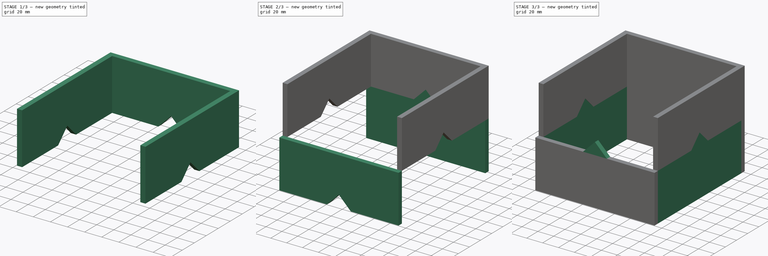
[diagram: build sequence overview — one tinted view per stage of 3, left to right]
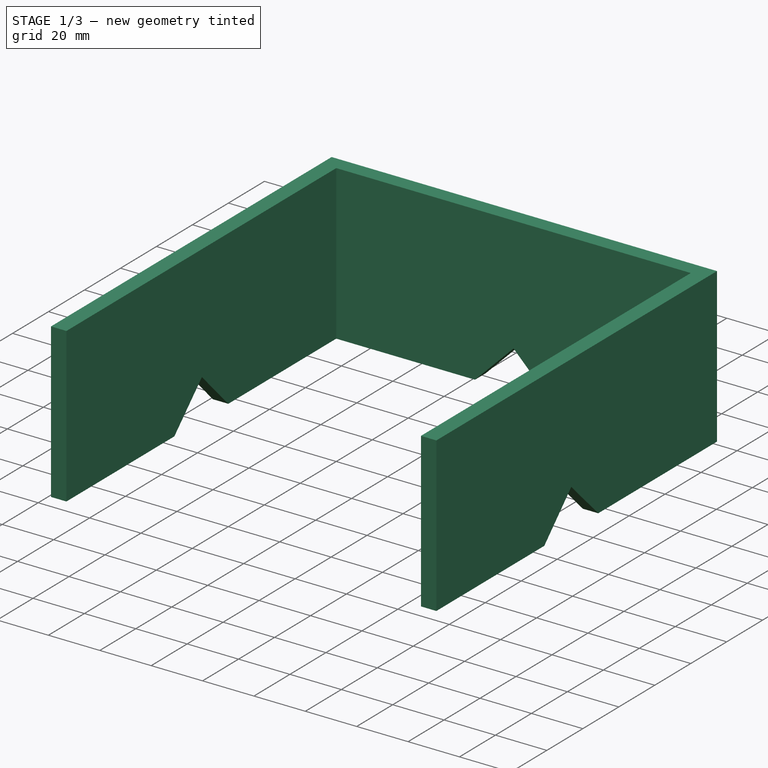
[diagram: stage 1 of 3 — iso view after this stage's code; geometry added in this stage tinted green]
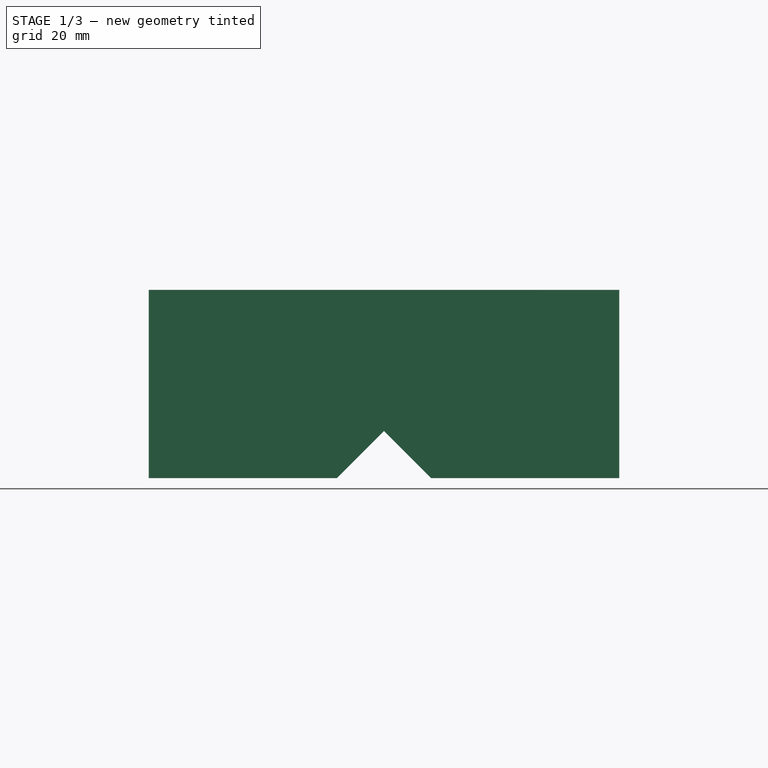
[diagram: stage 1 of 3 — front view after this stage's code; geometry added in this stage tinted green]
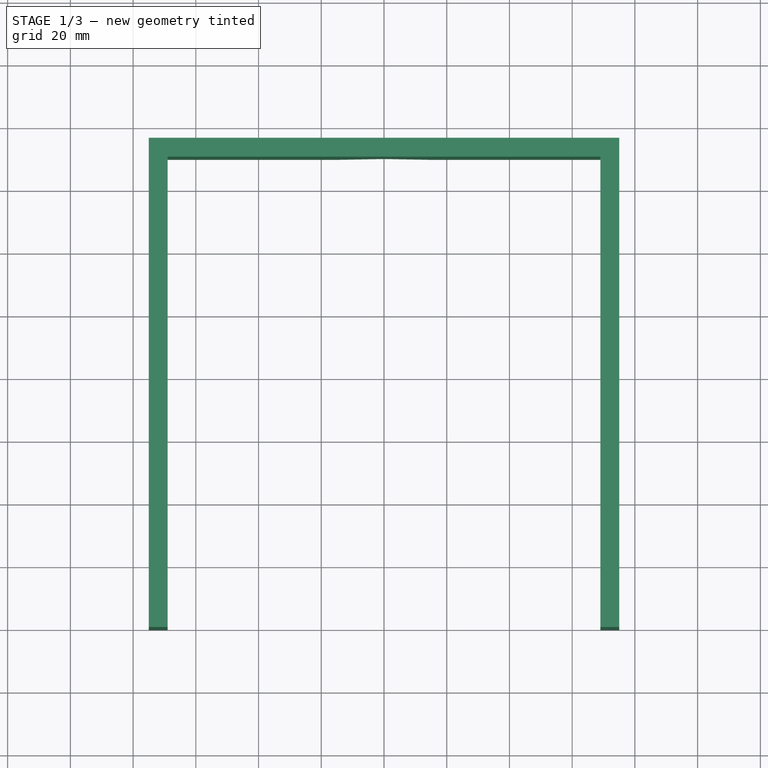
[diagram: stage 1 of 3 — top view after this stage's code; geometry added in this stage tinted green]
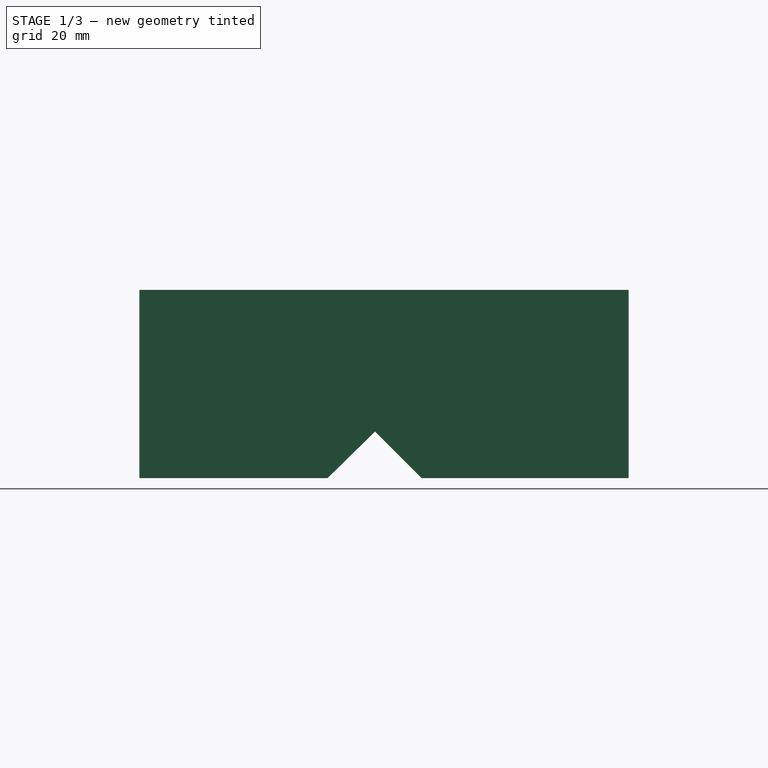
[diagram: stage 1 of 3 — right view after this stage's code; geometry added in this stage tinted green]
FCSTD DOCUMENT  (FreeCAD 0.20R29603 (Git))
Label: casting_box
License: All rights reserved
LicenseURL: http://en.wikipedia.org/wiki/All_rights_reserved
objects: Part::Feature×16, Sketcher::SketchObject×8, PartDesign::Pad×8, PartDesign::Body×8, App::DocumentObjectGroup×1, Part::FeaturePython×1
note: 49 computed .brp shape members not serialized (recipe doc carries the construction recipe); baked Part::Feature solids carry a one-line shape summary decoded from their .brp

FEATURE [PartDesign::Body] Body004  label="TopFront"
  Group = -> [Sketch004,Pad004]
  Origin = -> Origin004
  Placement = pos=(0,0,60) rot=(0,0,1;0rad)
  Tip = -> Pad004
FEATURE [Sketcher::SketchObject] Sketch005
  AttachmentOffset = pos=(0,60,-75) rot=(0,0,1;0rad)
  FullyConstrained = true
  MapMode = 5
  Placement = pos=(-75,3e-14,60) rot=(0.57735,0.57735,0.57735;2.0944rad)
  Support = -> [YZ_Plane005]
  sketch-geometry (7):
    g0: LineSegment StartX=150 StartY=0 StartZ=0 EndX=150 EndY=60 EndZ=0
    g1: LineSegment StartX=150 StartY=60 StartZ=0 EndX=0 EndY=60 EndZ=0
    g2: LineSegment StartX=0 StartY=60 StartZ=0 EndX=0 EndY=0 EndZ=0
    g3: LineSegment StartX=0 StartY=0 StartZ=0 EndX=59.9967 EndY=0 EndZ=0
    g4: LineSegment StartX=150 StartY=0 StartZ=0 EndX=90.0033 EndY=0 EndZ=0
    g5: LineSegment StartX=90.0033 StartY=0 StartZ=0 EndX=75.3142 EndY=15 EndZ=0
    g6: LineSegment StartX=59.9967 StartY=0 StartZ=0 EndX=75.3142 EndY=15 EndZ=0
  constraints (20):
    c: Coincident(g0,g1)
    c: Coincident(g1,g2)
    c: Horizontal(g1)
    c: Vertical(g0)
    c: Vertical(g2)
    c: DistanceY(g0,g0) = 60
    c: DistanceX(g2,g0) = 150
    c: Coincident(g3,g2)
    c: PointOnObject(g3,g-1)
    c: Coincident(g4,g0)
    c: PointOnObject(g4,g-1)
    c: Horizontal(g4)
    c: Coincident(g5,g4)
    c: Coincident(g6,g3)
    c: Coincident(g6,g5)
    c: Equal(g3,g4)
    c: Coincident(g2,g-1)
    c: Angle(g6,g5) = 1.5708
    c: Angle(g6,g-1) = 2.36667
    c: DistanceY(g4,g5) = 15
FEATURE [PartDesign::Pad] Pad005
  Direction = (1,-2e-16,3e-16)
  Length = 6
  Length2 = 10
  Placement = pos=(0,0,0) rot=(0.57735,0.57735,0.57735;2.0944rad)
  Profile = -> Sketch005
  ReferenceAxis = -> Sketch005 [N_Axis]
  Type = 0
FEATURE [PartDesign::Body] Body005  label="TopLeft"
  Group = -> [Sketch005,Pad005]
  Origin = -> Origin005
  Tip = -> Pad005
FEATURE [Sketcher::SketchObject] Sketch006
  AttachmentOffset = pos=(0,60,75) rot=(0,0,1;0rad)
  FullyConstrained = true
  MapMode = 5
  Placement = pos=(75,-3.3e-15,60) rot=(0.57735,0.57735,0.57735;2.0944rad)
  Support = -> [YZ_Plane006]
  sketch-geometry (7):
    g0: LineSegment StartX=150 StartY=0 StartZ=0 EndX=150 EndY=60 EndZ=0
    g1: LineSegment StartX=150 StartY=60 StartZ=0 EndX=0 EndY=60 EndZ=0
    g2: LineSegment StartX=0 StartY=60 StartZ=0 EndX=0 EndY=0 EndZ=0
    g3: LineSegment StartX=0 StartY=0 StartZ=0 EndX=60 EndY=0 EndZ=0
    g4: LineSegment StartX=150 StartY=0 StartZ=0 EndX=90 EndY=0 EndZ=0
    g5: LineSegment StartX=60 StartY=0 StartZ=0 EndX=75 EndY=15 EndZ=0
    g6: LineSegment StartX=90 StartY=0 StartZ=0 EndX=75 EndY=15 EndZ=0
  constraints (20):
    c: Coincident(g0,g1)
    c: Coincident(g1,g2)
    c: Horizontal(g1)
    c: Vertical(g0)
    c: Vertical(g2)
    c: Coincident(g3,g2)
    c: PointOnObject(g3,g-1)
    c: Coincident(g4,g0)
    c: PointOnObject(g4,g-1)
    c: Horizontal(g4)
    c: Coincident(g5,g3)
    c: Coincident(g6,g4)
    c: Coincident(g6,g5)
    c: Angle(g5,g6) = 1.5708
    c: Angle(g5,g-1) = 2.35619
    c: Equal(g3,g4)
    c: Coincident(g2,g-1)
    c: DistanceY(g0,g0) = 60
    c: DistanceX(g1,g1) = 150
    c: DistanceY(g4,g5) = 15
FEATURE [PartDesign::Pad] Pad006
  Direction = (1,-2e-16,3e-16)
  Length = 6
  Length2 = 10
  Placement = pos=(0,0,0) rot=(0.57735,0.57735,0.57735;2.0944rad)
  Profile = -> Sketch006
  ReferenceAxis = -> Sketch006 [N_Axis]
  Reversed = true
  Type = 0
FEATURE [PartDesign::Body] Body006  label="TopRight"
  Group = -> [Sketch006,Pad006]
  Origin = -> Origin006
  Tip = -> Pad006
FEATURE [Sketcher::SketchObject] Sketch007
  AttachmentOffset = pos=(0,60,-150) rot=(0,0,1;0rad)
  FullyConstrained = true
  MapMode = 5
  Placement = pos=(0,150,60) rot=(1,0,0;1.5708rad)
  Support = -> [XZ_Plane007]
  sketch-geometry (7):
    g0: LineSegment StartX=-75 StartY=60 StartZ=0 EndX=75 EndY=60 EndZ=0
    g1: LineSegment StartX=75 StartY=60 StartZ=0 EndX=75 EndY=0 EndZ=0
    g2: LineSegment StartX=-75 StartY=0 StartZ=0 EndX=-75 EndY=60 EndZ=0
    g3: LineSegment StartX=-75 StartY=0 StartZ=0 EndX=-15 EndY=0 EndZ=0
    g4: LineSegment StartX=75 StartY=0 StartZ=0 EndX=15 EndY=0 EndZ=0
    g5: LineSegment StartX=-15 StartY=0 StartZ=0 EndX=1.8e-15 EndY=15 EndZ=0
    g6: LineSegment StartX=15 StartY=0 StartZ=0 EndX=1.8e-15 EndY=15 EndZ=0
  constraints (20):
    c: Coincident(g0,g1)
    c: Coincident(g2,g0)
    c: Horizontal(g0)
    c: Vertical(g1)
    c: Vertical(g2)
    c: DistanceY(g1,g1) = 60
    c: DistanceX(g0,g0) = 150
    c: Symmetric(g2,g1,g-1)
    c: Coincident(g3,g2)
    c: PointOnObject(g3,g-1)
    c: Horizontal(g3)
    c: Coincident(g4,g1)
    c: Horizontal(g4)
    c: Coincident(g5,g3)
    c: Coincident(g6,g4)
    c: Coincident(g6,g5)
    c: PointOnObject(g5,g-2)
    c: Equal(g3,g4)
    c: DistanceY(g4,g5) = 15
    c: Angle(g5,g6) = 1.5708
FEATURE [PartDesign::Pad] Pad007
  Direction = (0,-1,2e-16)
  Length = 6
  Length2 = 10
  Placement = pos=(0,0,0) rot=(1,0,0;1.5708rad)
  Profile = -> Sketch007
  ReferenceAxis = -> Sketch007 [N_Axis]
  Reversed = true
  Type = 0
FEATURE [PartDesign::Body] Body007  label="TopBack"
  Group = -> [Sketch007,Pad007]
  Origin = -> Origin007
  Tip = -> Pad007
FEATURE [Part::Feature] Body008  label="Front001"
  shape: bbox 150 x 6 x 75 mm, 9 faces (baked)
FEATURE [Part::Feature] Body001001  label="Left001"
  shape: bbox 6 x 150 x 75 mm, 9 faces (baked)
FEATURE [Part::Feature] Body002001  label="Right001"
  shape: bbox 6 x 150 x 75 mm, 9 faces (baked)
FEATURE [Part::Feature] Body003001  label="Back001"
  shape: bbox 150 x 6 x 75 mm, 9 faces (baked)
FEATURE [Part::Feature] Body004001  label="TopFront001"
  Placement = pos=(0,0,60) rot=(0,0,1;0rad)
  shape: bbox 150 x 6 x 60 mm, 9 faces (baked)
FEATURE [Part::Feature] Body005001  label="TopLeft001"
  shape: bbox 6 x 150 x 60 mm, 9 faces (baked)
FEATURE [Part::Feature] Body006001  label="TopRight001"
  shape: bbox 6 x 150 x 60 mm, 9 faces (baked)
FEATURE [Part::Feature] Body007001  label="TopBack001"
  shape: bbox 150 x 6 x 60 mm, 9 faces (baked)
FEATURE [App::DocumentObjectGroup] MultiJoin_origin_parts
  Group = -> [Body008,Body001001,Body002001,Body003001,Body004001,Body005001,Body006001,Body007001]
FEATURE [Part::Feature] Front001_tab
  shape: bbox 150 x 6 x 75 mm, 23 faces (baked)
FEATURE [Part::Feature] Left001_tab
  shape: bbox 6 x 162 x 75 mm, 25 faces (baked)
FEATURE [Part::Feature] Right001_tab
  shape: bbox 6 x 162 x 75 mm, 25 faces (baked)
FEATURE [Part::Feature] Back001_tab
  shape: bbox 150 x 6 x 75 mm, 23 faces (baked)
FEATURE [Part::Feature] TopFront001_tab
  shape: bbox 150 x 6 x 60 mm, 23 faces (baked)
FEATURE [Part::Feature] TopLeft001_tab
  shape: bbox 6 x 162 x 60 mm, 25 faces (baked)
FEATURE [Part::Feature] TopRight001_tab
  shape: bbox 6 x 162 x 60 mm, 25 faces (baked)
FEATURE [Part::Feature] TopBack001_tab
  shape: bbox 150 x 6 x 60 mm, 23 faces (baked)
FEATURE [Part::FeaturePython] MultiJoin  # WARN: FeaturePython — macro-defined, semantics opaque (R4)
  fromParts = -> [MultiJoin_origin_parts,Body008,Body001001,Body002001,Body003001,Body004001,Body005001,Body006001,Body007001]
  generatedParts = -> [Front001_tab,Left001_tab,Right001_tab,Back001_tab,TopFront001_tab,TopLeft001_tab,TopRight001_tab,TopBack001_tab]
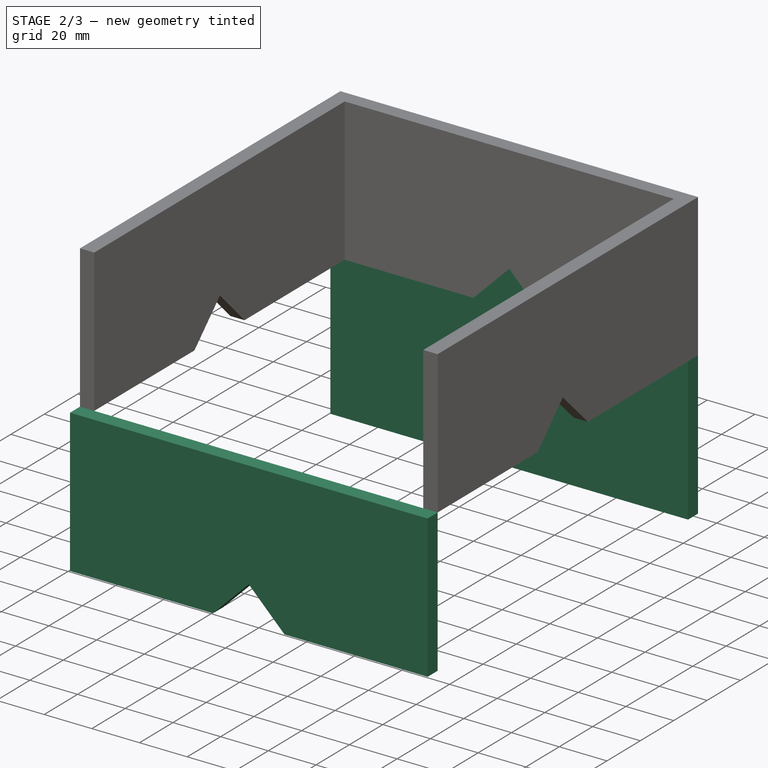
[diagram: stage 2 of 3 — iso view after this stage's code; geometry added in this stage tinted green]
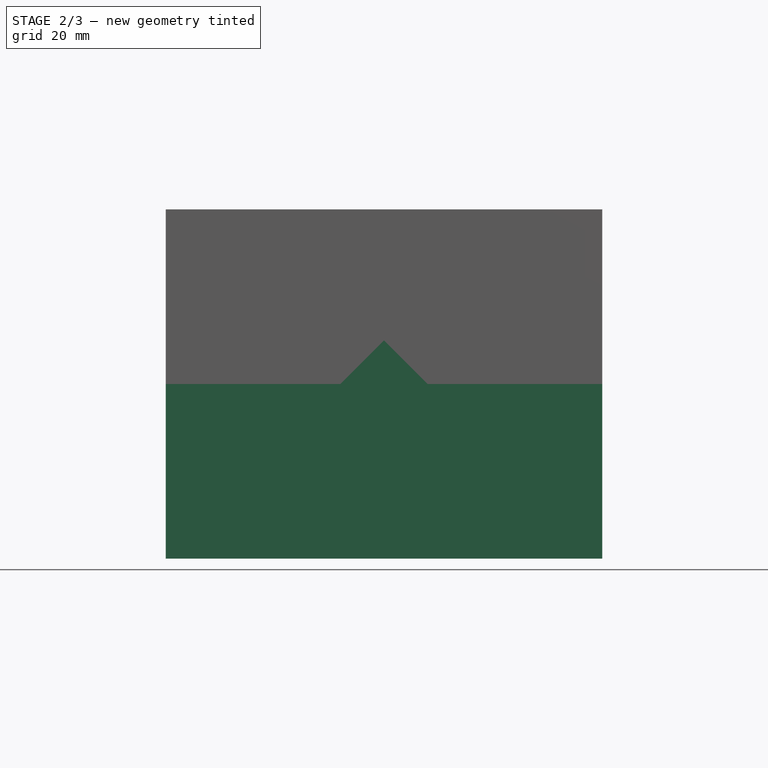
[diagram: stage 2 of 3 — front view after this stage's code; geometry added in this stage tinted green]
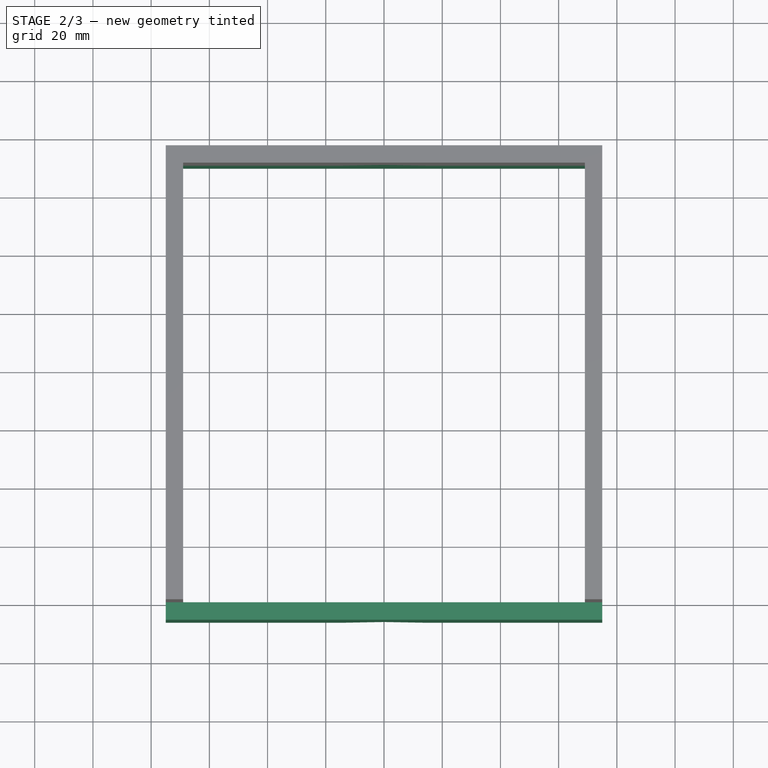
[diagram: stage 2 of 3 — top view after this stage's code; geometry added in this stage tinted green]
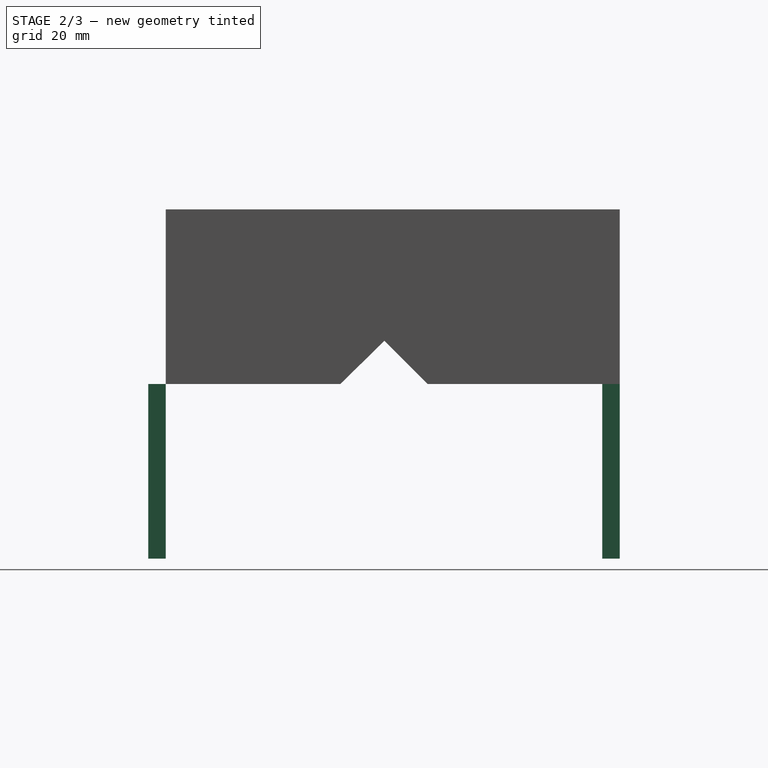
[diagram: stage 2 of 3 — right view after this stage's code; geometry added in this stage tinted green]
FEATURE [PartDesign::Body] Body002  label="Right"
  Group = -> [Sketch002,Pad002]
  Origin = -> Origin002
  Tip = -> Pad002
FEATURE [Sketcher::SketchObject] Sketch003
  AttachmentOffset = pos=(0,0,-150) rot=(0,0,1;0rad)
  FullyConstrained = true
  MapMode = 5
  Placement = pos=(0,150,-3.33e-14) rot=(1,0,0;1.5708rad)
  Support = -> [XZ_Plane003]
  sketch-geometry (7):
    g0: LineSegment StartX=-75 StartY=0 StartZ=0 EndX=75 EndY=0 EndZ=0
    g1: LineSegment StartX=75 StartY=0 StartZ=0 EndX=75 EndY=60 EndZ=0
    g2: LineSegment StartX=-75 StartY=60 StartZ=0 EndX=-75 EndY=0 EndZ=0
    g3: LineSegment StartX=-75 StartY=60 StartZ=0 EndX=-15 EndY=60 EndZ=0
    g4: LineSegment StartX=75 StartY=60 StartZ=0 EndX=15 EndY=60 EndZ=0
    g5: LineSegment StartX=-15 StartY=60 StartZ=0 EndX=3.6e-15 EndY=75 EndZ=0
    g6: LineSegment StartX=15 StartY=60 StartZ=0 EndX=3.6e-15 EndY=75 EndZ=0
  constraints (20):
    c: Coincident(g0,g1)
    c: Coincident(g2,g0)
    c: Horizontal(g0)
    c: Vertical(g1)
    c: Vertical(g2)
    c: DistanceY(g1,g1) = 60
    c: DistanceX(g2,g1) = 150
    c: Symmetric(g0,g0,g-1)
    c: Coincident(g3,g2)
    c: Horizontal(g3)
    c: Coincident(g4,g1)
    c: Horizontal(g4)
    c: Coincident(g5,g3)
    c: Coincident(g6,g4)
    c: Coincident(g6,g5)
    c: Angle(g5,g6) = 1.5708
    c: Equal(g3,g4)
    c: DistanceY(g2,g2) = 60
    c: Angle(g0,g5) = 0.785398
    c: DistanceY(g4,g5) = 15
FEATURE [PartDesign::Pad] Pad003
  Direction = (0,-1,2e-16)
  Length = 6
  Length2 = 10
  Placement = pos=(0,0,0) rot=(1,0,0;1.5708rad)
  Profile = -> Sketch003
  ReferenceAxis = -> Sketch003 [N_Axis]
  Reversed = true
  Type = 0
FEATURE [PartDesign::Body] Body003  label="Back"
  Group = -> [Sketch003,Pad003]
  Origin = -> Origin003
  Tip = -> Pad003
FEATURE [Sketcher::SketchObject] Sketch004
  FullyConstrained = true
  MapMode = 5
  Placement = pos=(0,0,0) rot=(1,0,0;1.5708rad)
  Support = -> [XZ_Plane004]
  sketch-geometry (7):
    g0: LineSegment StartX=75 StartY=0 StartZ=0 EndX=75 EndY=60 EndZ=0
    g1: LineSegment StartX=75 StartY=60 StartZ=0 EndX=-75 EndY=60 EndZ=0
    g2: LineSegment StartX=-75 StartY=60 StartZ=0 EndX=-75 EndY=0 EndZ=0
    g3: LineSegment StartX=-75 StartY=0 StartZ=0 EndX=-15 EndY=0 EndZ=0
    g4: LineSegment StartX=75 StartY=0 StartZ=0 EndX=15 EndY=0 EndZ=0
    g5: LineSegment StartX=-15 StartY=0 StartZ=0 EndX=0 EndY=15 EndZ=0
    g6: LineSegment StartX=15 StartY=0 StartZ=0 EndX=0 EndY=15 EndZ=0
  constraints (20):
    c: Coincident(g0,g1)
    c: Coincident(g1,g2)
    c: Horizontal(g1)
    c: Vertical(g0)
    c: Vertical(g2)
    c: DistanceY(g0,g0) = 60
    c: DistanceX(g1,g1) = 150
    c: Symmetric(g2,g0,g-1)
    c: Coincident(g3,g2)
    c: Horizontal(g3)
    c: Coincident(g4,g0)
    c: Horizontal(g4)
    c: Coincident(g5,g3)
    c: Coincident(g6,g4)
    c: Coincident(g6,g5)
    c: PointOnObject(g5,g-2)
    c: Equal(g3,g4)
    c: Angle(g5,g6) = 1.5708
    c: DistanceY(g4,g5) = 15
    c: PointOnObject(g0,g-1)
FEATURE [PartDesign::Pad] Pad004
  Direction = (0,-1,2e-16)
  Length = 6
  Length2 = 10
  Placement = pos=(0,0,0) rot=(1,0,0;1.5708rad)
  Profile = -> Sketch004
  ReferenceAxis = -> Sketch004 [N_Axis]
  Type = 0
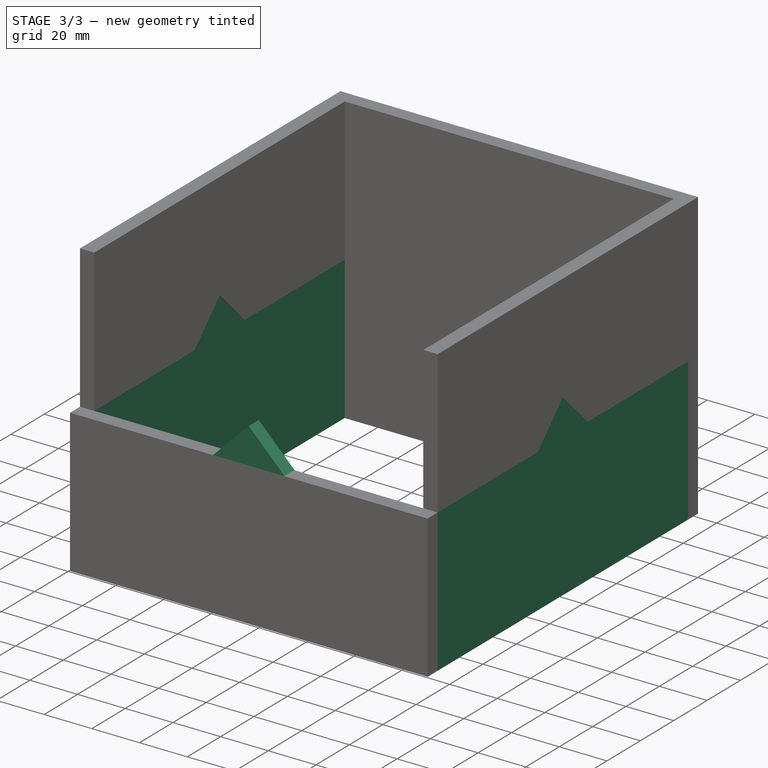
[diagram: stage 3 of 3 — iso view after this stage's code; geometry added in this stage tinted green]
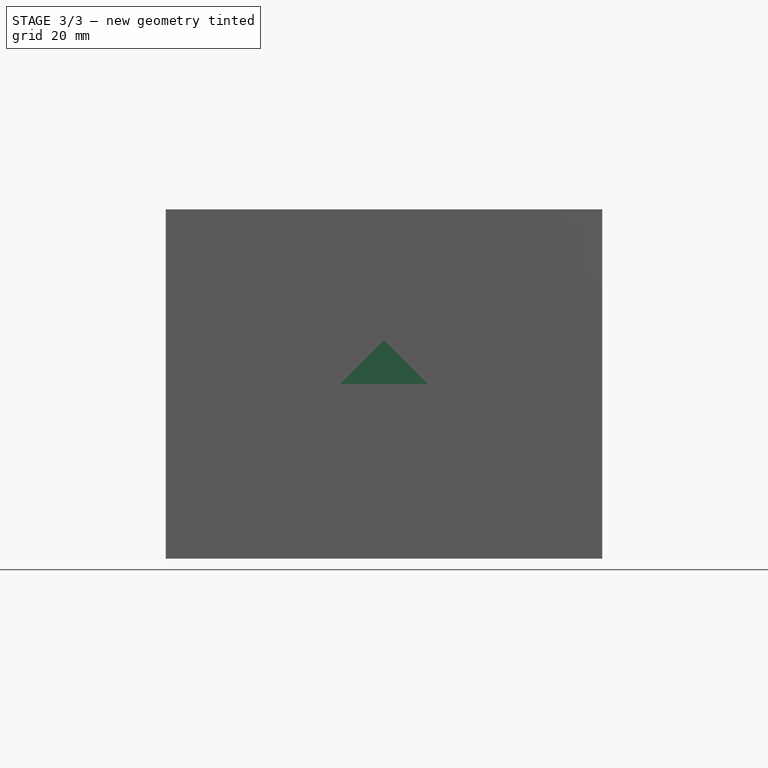
[diagram: stage 3 of 3 — front view after this stage's code; geometry added in this stage tinted green]
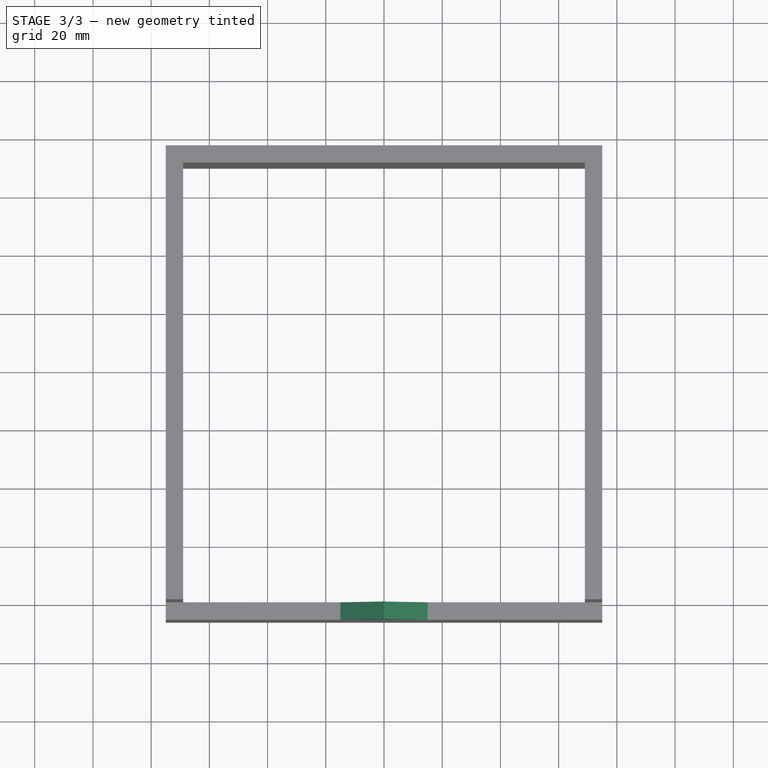
[diagram: stage 3 of 3 — top view after this stage's code; geometry added in this stage tinted green]
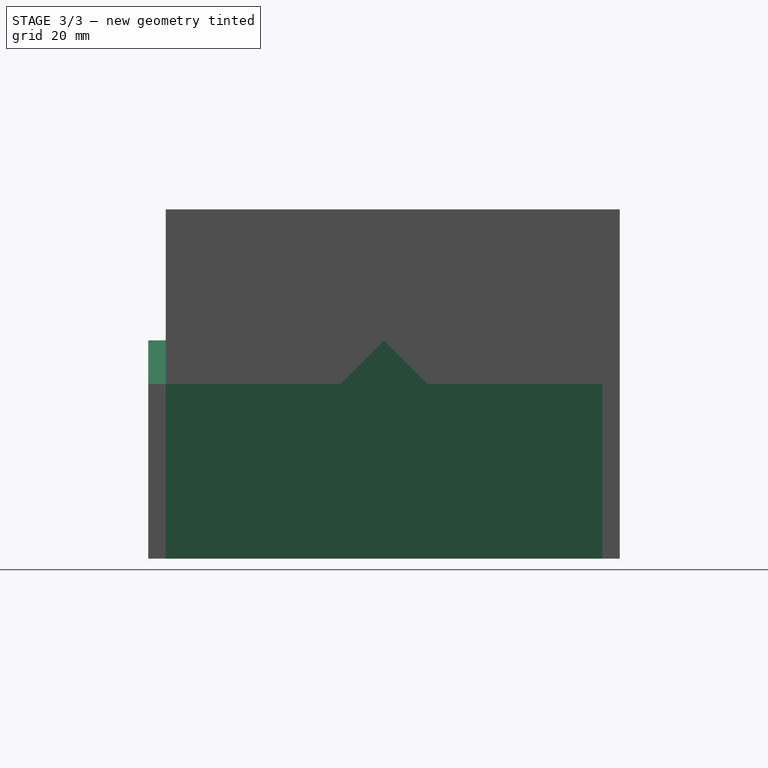
[diagram: stage 3 of 3 — right view after this stage's code; geometry added in this stage tinted green]
FEATURE [Sketcher::SketchObject] Sketch
  FullyConstrained = true
  MapMode = 5
  Placement = pos=(0,0,0) rot=(1,0,0;1.5708rad)
  Support = -> [XZ_Plane]
  sketch-geometry (7):
    g0: LineSegment StartX=-75 StartY=0 StartZ=0 EndX=75 EndY=0 EndZ=0
    g1: LineSegment StartX=75 StartY=0 StartZ=0 EndX=75 EndY=60 EndZ=0
    g2: LineSegment StartX=-75 StartY=60 StartZ=0 EndX=-75 EndY=0 EndZ=0
    g3: LineSegment StartX=-75 StartY=60 StartZ=0 EndX=-15 EndY=60 EndZ=0
    g4: LineSegment StartX=75 StartY=60 StartZ=0 EndX=15 EndY=60 EndZ=0
    g5: LineSegment StartX=-15 StartY=60 StartZ=0 EndX=-5.3e-15 EndY=75 EndZ=0
    g6: LineSegment StartX=15 StartY=60 StartZ=0 EndX=-7.1e-15 EndY=75 EndZ=0
  constraints (20):
    c: Coincident(g0,g1)
    c: Coincident(g2,g0)
    c: Horizontal(g0)
    c: Vertical(g1)
    c: Vertical(g2)
    c: DistanceY(g1,g1) = 60
    c: DistanceX(g2,g1) = 150
    c: Symmetric(g0,g0,g-1)
    c: Coincident(g3,g2)
    c: Horizontal(g3)
    c: Coincident(g4,g1)
    c: Horizontal(g4)
    c: Coincident(g5,g3)
    c: Coincident(g6,g4)
    c: Coincident(g6,g5)
    c: Angle(g5,g6) = 1.5708
    c: Angle(g0,g5) = 0.785398
    c: Equal(g3,g4)
    c: DistanceY(g4,g5) = 15
    c: DistanceY(g2,g2) = 60
FEATURE [PartDesign::Pad] Pad
  Direction = (0,-1,2e-16)
  Length = 6
  Length2 = 10
  Placement = pos=(0,0,0) rot=(1,0,0;1.5708rad)
  Profile = -> Sketch
  ReferenceAxis = -> Sketch [N_Axis]
  Type = 0
FEATURE [PartDesign::Body] Body  label="Front"
  Group = -> [Sketch,Pad]
  Origin = -> Origin
  Tip = -> Pad
FEATURE [Sketcher::SketchObject] Sketch001
  AttachmentOffset = pos=(0,0,-75) rot=(0,0,1;0rad)
  FullyConstrained = true
  MapMode = 5
  Placement = pos=(-75,1.67e-14,-1.67e-14) rot=(0.57735,0.57735,0.57735;2.0944rad)
  Support = -> [YZ_Plane001]
  sketch-geometry (7):
    g0: LineSegment StartX=0 StartY=0 StartZ=0 EndX=150 EndY=0 EndZ=0
    g1: LineSegment StartX=150 StartY=0 StartZ=0 EndX=150 EndY=60 EndZ=0
    g2: LineSegment StartX=0 StartY=60 StartZ=0 EndX=0 EndY=0 EndZ=0
    g3: LineSegment StartX=0 StartY=60 StartZ=0 EndX=60 EndY=60 EndZ=0
    g4: LineSegment StartX=150 StartY=60 StartZ=0 EndX=90 EndY=60 EndZ=0
    g5: LineSegment StartX=60 StartY=60 StartZ=0 EndX=75 EndY=75 EndZ=0
    g6: LineSegment StartX=90 StartY=60 StartZ=0 EndX=75 EndY=75 EndZ=0
  constraints (20):
    c: Coincident(g0,g1)
    c: Coincident(g2,g0)
    c: Horizontal(g0)
    c: Vertical(g1)
    c: Vertical(g2)
    c: Coincident(g0,g-1)
    c: DistanceY(g1,g1) = 60
    c: DistanceX(g2,g1) = 150
    c: Coincident(g3,g2)
    c: Horizontal(g3)
    c: Coincident(g4,g1)
    c: Horizontal(g4)
    c: Coincident(g5,g3)
    c: Coincident(g6,g4)
    c: Coincident(g6,g5)
    c: Angle(g5,g6) = 1.5708
    c: Equal(g3,g4)
    c: Equal(g2,g1)
    c: Angle(g0,g5) = 0.785398
    c: DistanceY(g3,g5) = 15
FEATURE [PartDesign::Pad] Pad001
  Direction = (1,-2e-16,3e-16)
  Length = 6
  Length2 = 10
  Placement = pos=(0,0,0) rot=(0.57735,0.57735,0.57735;2.0944rad)
  Profile = -> Sketch001
  ReferenceAxis = -> Sketch001 [N_Axis]
  Type = 0
FEATURE [PartDesign::Body] Body001  label="Left"
  Group = -> [Sketch001,Pad001]
  Origin = -> Origin001
  Tip = -> Pad001
FEATURE [Sketcher::SketchObject] Sketch002
  AttachmentOffset = pos=(0,0,75) rot=(0,0,1;0rad)
  FullyConstrained = true
  MapMode = 5
  Placement = pos=(75,-1.67e-14,1.67e-14) rot=(0.57735,0.57735,0.57735;2.0944rad)
  Support = -> [YZ_Plane002]
  sketch-geometry (7):
    g0: LineSegment StartX=0 StartY=0 StartZ=0 EndX=150 EndY=0 EndZ=0
    g1: LineSegment StartX=150 StartY=0 StartZ=0 EndX=150 EndY=60 EndZ=0
    g2: LineSegment StartX=0 StartY=60 StartZ=0 EndX=0 EndY=0 EndZ=0
    g3: LineSegment StartX=0 StartY=60 StartZ=0 EndX=60 EndY=60 EndZ=0
    g4: LineSegment StartX=150 StartY=60 StartZ=0 EndX=90 EndY=60 EndZ=0
    g5: LineSegment StartX=60 StartY=60 StartZ=0 EndX=75 EndY=75 EndZ=0
    g6: LineSegment StartX=90 StartY=60 StartZ=0 EndX=75 EndY=75 EndZ=0
  constraints (20):
    c: Coincident(g0,g1)
    c: Coincident(g2,g0)
    c: Horizontal(g0)
    c: Vertical(g1)
    c: Vertical(g2)
    c: Coincident(g0,g-1)
    c: DistanceX(g2,g1) = 150
    c: DistanceY(g1,g1) = 60
    c: Equal(g2,g1)
    c: Coincident(g3,g2)
    c: Horizontal(g3)
    c: Coincident(g4,g1)
    c: Horizontal(g4)
    c: Coincident(g5,g3)
    c: Coincident(g6,g4)
    c: Coincident(g6,g5)
    c: Equal(g4,g3)
    c: Angle(g5,g6) = 1.5708
    c: Angle(g0,g5) = 0.785398
    c: DistanceY(g4,g5) = 15
FEATURE [PartDesign::Pad] Pad002
  Direction = (1,-2e-16,3e-16)
  Length = 6
  Length2 = 10
  Placement = pos=(0,0,0) rot=(0.57735,0.57735,0.57735;2.0944rad)
  Profile = -> Sketch002
  ReferenceAxis = -> Sketch002 [N_Axis]
  Reversed = true
  Type = 0
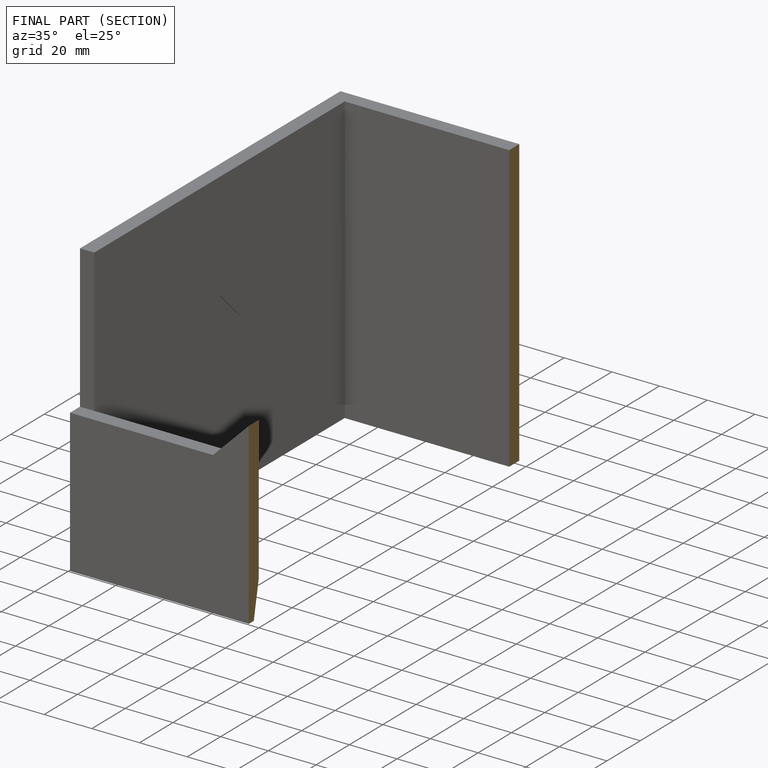
[diagram: finished part — half-section view (interior)]
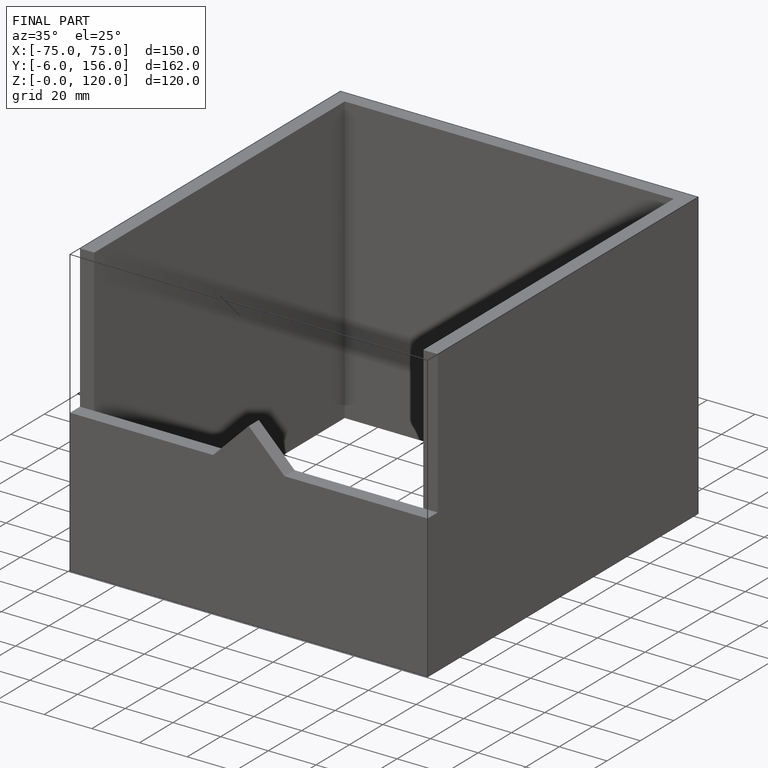
[diagram: finished part — iso view with bounding-box wireframe]
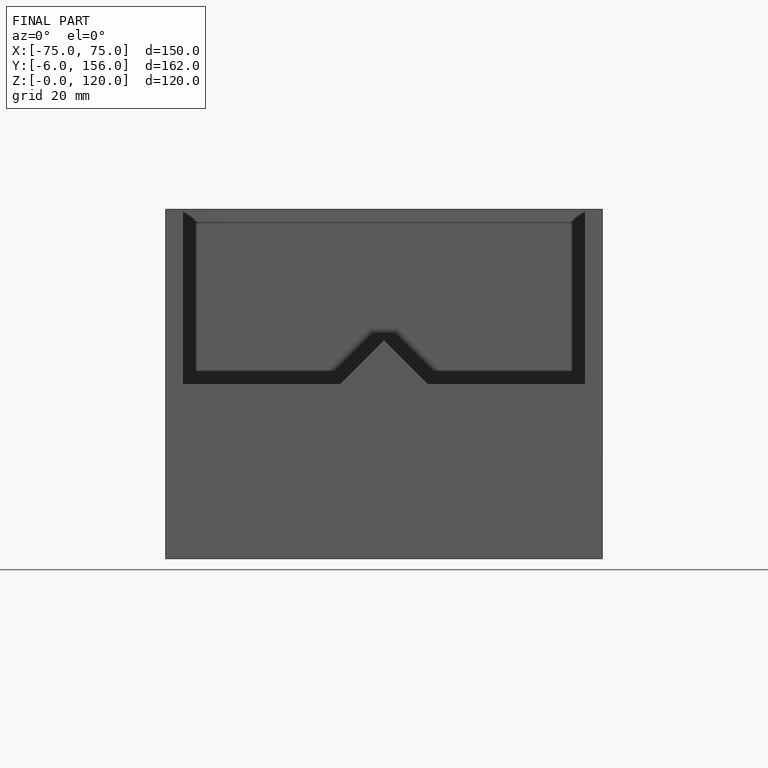
[diagram: finished part — front view with bounding-box wireframe]
